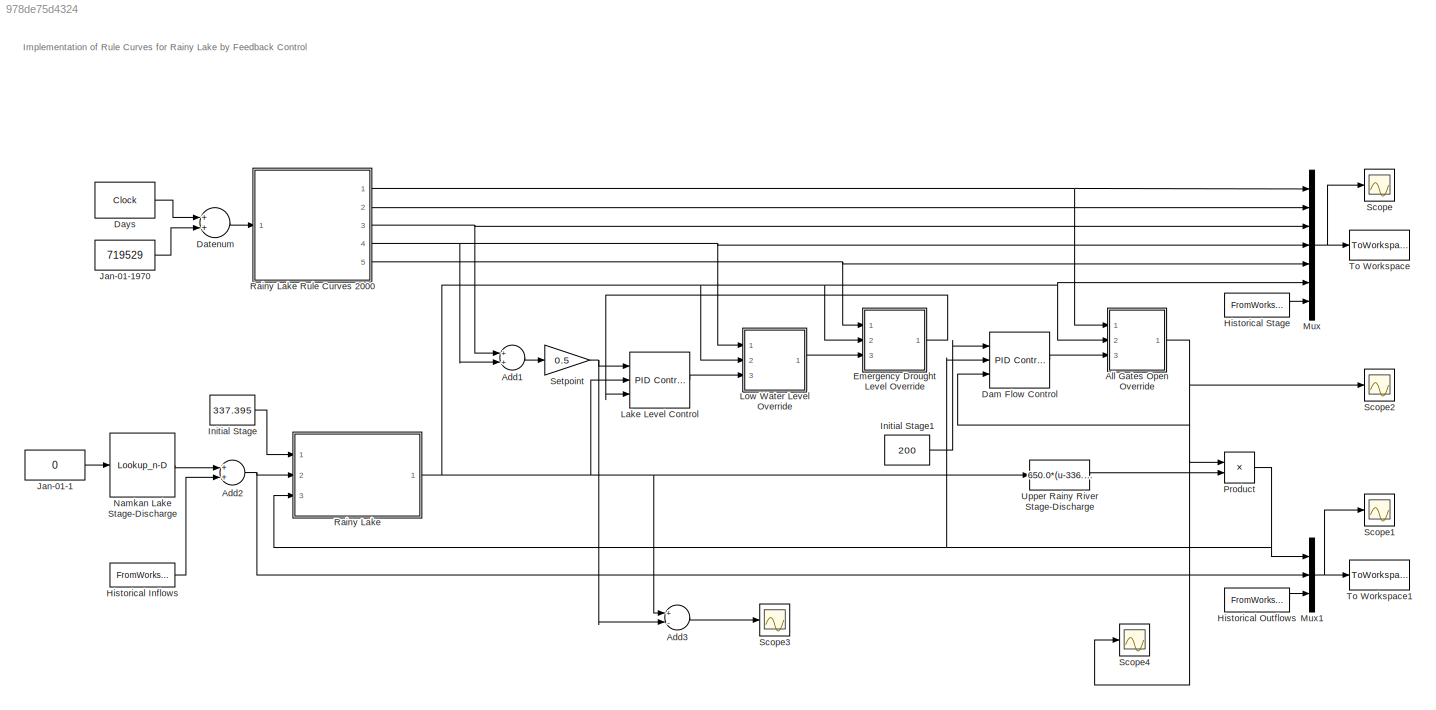
MODEL slx_978de75d4324
KIND model
CONFIG AbsTol = auto
CONFIG FixedStep = auto
CONFIG MaxStep = 1
CONFIG MinStep = auto
CONFIG RelTol = 1e-3
CONFIG SampleTimeConstraint = Unconstrained
CONFIG Solver = ode45
CONFIG SolverMode = Auto
CONFIG SolverName = ode45
CONFIG StartTime = 0.0
CONFIG StopTime = 40*365
BLOCK [Sum] Add1
  InputSameDT = off
  OutDataTypeStr = Inherit: Inherit via internal rule
  Ports = [2, 1]
  SaturateOnIntegerOverflow = off
BLOCK [Sum] Add2
  InputSameDT = off
  OutDataTypeStr = Inherit: Inherit via internal rule
  Ports = [2, 1]
  SaturateOnIntegerOverflow = off
BLOCK [Sum] Add3
  InputSameDT = off
  Inputs = +-
  OutDataTypeStr = Inherit: Inherit via internal rule
  Ports = [2, 1]
  SaturateOnIntegerOverflow = off
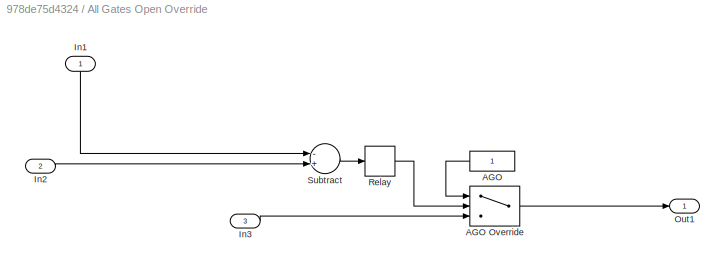
BLOCK [SubSystem] All Gates Open Override
  Ports = [3, 1]
  RequestExecContextInheritance = off
  Variant = off
BLOCK [Constant] All Gates Open Override/AGO
BLOCK [Switch] All Gates Open Override/AGO Override
  Criteria = u2 > Threshold
  InputSameDT = off
  SaturateOnIntegerOverflow = off
BLOCK [Inport] All Gates Open Override/In1
  IconDisplay = Port number
BLOCK [Inport] All Gates Open Override/In2
  IconDisplay = Port number
  Port = 2
BLOCK [Inport] All Gates Open Override/In3
  IconDisplay = Port number
  Port = 3
BLOCK [Outport] All Gates Open Override/Out1
  IconDisplay = Port number
BLOCK [Relay] All Gates Open Override/Relay
  InputProcessing = Elements as channels (sample based)
  OffSwitchValue = -0.02
  OnSwitchValue = 0.02
BLOCK [Sum] All Gates Open Override/Subtract
  InputSameDT = off
  Inputs = -+
  OutDataTypeStr = Inherit: Inherit via internal rule
  Ports = [2, 1]
  SaturateOnIntegerOverflow = off
BLOCK [Reference] Dam Flow Control  REF=simulink/Continuous/PID Controller (2DOF)
  Ports = [3, 1]
  SourceBlock = simulink/Continuous/PID Controller (2DOF)
  SourceType = PID 2dof
BLOCK [Sum] Datenum
  InputSameDT = off
  OutDataTypeStr = Inherit: Inherit via internal rule
  Ports = [2, 1]
  SaturateOnIntegerOverflow = off
BLOCK [Clock] Days
  Decimation = 1
  DisplayTime = on
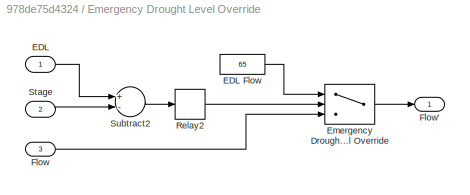
BLOCK [SubSystem] Emergency Drought Level Override
  Ports = [3, 1]
  RequestExecContextInheritance = off
  Variant = off
BLOCK [Inport] Emergency Drought Level Override/EDL
  IconDisplay = Port number
BLOCK [Constant] Emergency Drought Level Override/EDL Flow
  Value = 65
BLOCK [Switch] Emergency Drought Level Override/Emergency Drought Level Override
  Criteria = u2 > Threshold
  InputSameDT = off
  SaturateOnIntegerOverflow = off
BLOCK [Inport] Emergency Drought Level Override/Flow
  IconDisplay = Port number
  Port = 3
BLOCK [Outport] Emergency Drought Level Override/Flow'
  IconDisplay = Port number
BLOCK [Relay] Emergency Drought Level Override/Relay2
  InputProcessing = Elements as channels (sample based)
  OffSwitchValue = -0.02
  OnSwitchValue = 0.02
BLOCK [Inport] Emergency Drought Level Override/Stage
  IconDisplay = Port number
  Port = 2
BLOCK [Sum] Emergency Drought Level Override/Subtract2
  InputSameDT = off
  Inputs = +-
  OutDataTypeStr = Inherit: Inherit via internal rule
  Ports = [2, 1]
  SaturateOnIntegerOverflow = off
BLOCK [FromWorkspace] Historical Inflows
  SampleTime = 1
  VariableName = I
  ZeroCross = on
BLOCK [FromWorkspace] Historical Outflows
  SampleTime = 1
  VariableName = O
  ZeroCross = on
BLOCK [FromWorkspace] Historical Stage
  SampleTime = 1
  VariableName = H
  ZeroCross = on
BLOCK [Constant] Initial Stage
  Value = 337.395
BLOCK [Constant] Initial Stage1
  Value = 200
BLOCK [Constant] Jan-01-1
  Value = 0
BLOCK [Constant] Jan-01-1970
  Value = 719529
BLOCK [Reference] Lake Level Control  REF=simulink/Continuous/PID Controller (2DOF)
  Ports = [3, 1]
  SourceBlock = simulink/Continuous/PID Controller (2DOF)
  SourceType = PID 2dof
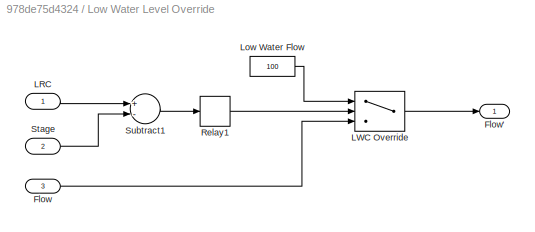
BLOCK [SubSystem] Low Water Level Override
  Ports = [3, 1]
  RequestExecContextInheritance = off
  Variant = off
BLOCK [Inport] Low Water Level Override/Flow
  IconDisplay = Port number
  Port = 3
BLOCK [Outport] Low Water Level Override/Flow'
  IconDisplay = Port number
BLOCK [Inport] Low Water Level Override/LRC
  IconDisplay = Port number
BLOCK [Switch] Low Water Level Override/LWC Override
  Criteria = u2 > Threshold
  InputSameDT = off
  SaturateOnIntegerOverflow = off
BLOCK [Constant] Low Water Level Override/Low Water Flow
  Value = 100
BLOCK [Relay] Low Water Level Override/Relay1
  InputProcessing = Elements as channels (sample based)
  OffSwitchValue = -0.02
  OnSwitchValue = 0.02
BLOCK [Inport] Low Water Level Override/Stage
  IconDisplay = Port number
  Port = 2
BLOCK [Sum] Low Water Level Override/Subtract1
  InputSameDT = off
  Inputs = +-
  OutDataTypeStr = Inherit: Inherit via internal rule
  Ports = [2, 1]
  SaturateOnIntegerOverflow = off
BLOCK [Mux] Mux
  DisplayOption = bar
  Inputs = 7
  Ports = [7, 1]
BLOCK [Mux] Mux1
  DisplayOption = bar
  Inputs = 3
  Ports = [3, 1]
BLOCK [Lookup_n-D] Namkan Lake Stage-Discharge
  BreakpointsForDimension1 = [335.21, 337.0, 338.0, 338.5, 339.0, 339.5, 340.0, 340.5, 341.0, 341.5, 342.0, 342.5, 343.0]
  ExtrapMethod = Clip
  InternalRulePriority = Speed
  NumberOfTableDimensions = 1
  Ports = [1, 1]
  RndMeth = Simplest
  Table = [0 51 120 173 233 299 373 455 549 659 772 886 999]
BLOCK [Product] Product
  InputSameDT = off
  OutDataTypeStr = Inherit: Inherit via internal rule
  Ports = [2, 1]
  RndMeth = Floor
  SaturateOnIntegerOverflow = off
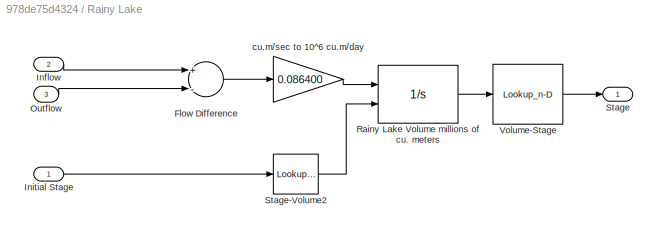
BLOCK [SubSystem] Rainy Lake
  Ports = [3, 1]
  RequestExecContextInheritance = off
  Variant = off
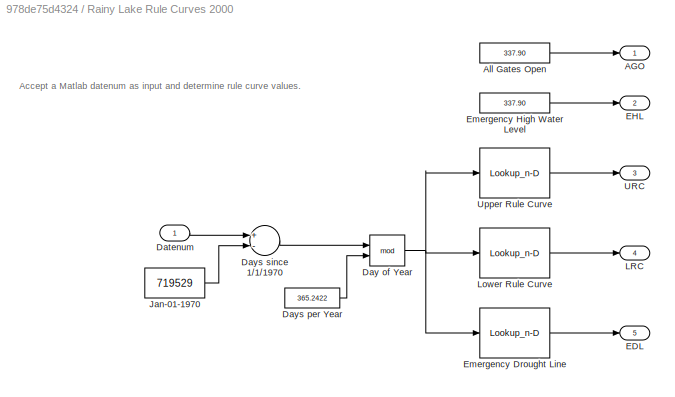
BLOCK [SubSystem] Rainy Lake Rule Curves 2000
  Ports = [1, 5]
  RequestExecContextInheritance = off
  Variant = off
BLOCK [Outport] Rainy Lake Rule Curves 2000/AGO
  IconDisplay = Port number
BLOCK [Constant] Rainy Lake Rule Curves 2000/All Gates Open
  Value = 337.90
BLOCK [Inport] Rainy Lake Rule Curves 2000/Datenum
  IconDisplay = Port number
BLOCK [Math] Rainy Lake Rule Curves 2000/Day of Year
  Operator = mod
  Ports = [2, 1]
BLOCK [Constant] Rainy Lake Rule Curves 2000/Days per Year
  Value = 365.2422
BLOCK [Sum] Rainy Lake Rule Curves 2000/Days since 1//1//1970
  InputSameDT = off
  Inputs = +-
  OutDataTypeStr = Inherit: Inherit via internal rule
  Ports = [2, 1]
  SaturateOnIntegerOverflow = off
BLOCK [Outport] Rainy Lake Rule Curves 2000/EDL
  IconDisplay = Port number
  Port = 5
BLOCK [Outport] Rainy Lake Rule Curves 2000/EHL
  IconDisplay = Port number
  Port = 2
BLOCK [Lookup_n-D] Rainy Lake Rule Curves 2000/Emergency Drought Line
  BreakpointsForDimension1 = [0 91 181 182 297 366]
  InternalRulePriority = Speed
  NumberOfTableDimensions = 1
  Ports = [1, 1]
  RndMeth = Simplest
  Table = [336.90 336.70 336.70 337.20 337.20 336.90]
BLOCK [Constant] Rainy Lake Rule Curves 2000/Emergency High Water Level
  Value = 337.90
BLOCK [Constant] Rainy Lake Rule Curves 2000/Jan-01-1970
  Value = 719529
BLOCK [Outport] Rainy Lake Rule Curves 2000/LRC
  IconDisplay = Port number
  Port = 4
BLOCK [Lookup_n-D] Rainy Lake Rule Curves 2000/Lower Rule Curve
  BreakpointsForDimension1 = [0 91 121 152 182 227 335 366]
  InternalRulePriority = Speed
  NumberOfTableDimensions = 1
  Ports = [1, 1]
  RndMeth = Simplest
  Table = [337.20 336.70 336.80 337.30 337.50 337.50 337.30 337.20]
BLOCK [Outport] Rainy Lake Rule Curves 2000/URC
  IconDisplay = Port number
  Port = 3
BLOCK [Lookup_n-D] Rainy Lake Rule Curves 2000/Upper Rule Curve
  BreakpointsForDimension1 = [0 91 121 152 182 227 335 366]
  InternalRulePriority = Speed
  NumberOfTableDimensions = 1
  Ports = [1, 1]
  RndMeth = Simplest
  Table = [337.45 337.0  337.40 337.60 337.75 337.75 337.60 337.45]
BLOCK [Sum] Rainy Lake/Flow Difference
  InputSameDT = off
  Inputs = +-
  OutDataTypeStr = Inherit: Inherit via internal rule
  Ports = [2, 1]
  SaturateOnIntegerOverflow = off
BLOCK [Inport] Rainy Lake/Inflow
  IconDisplay = Port number
  Port = 2
BLOCK [Inport] Rainy Lake/Initial Stage
  IconDisplay = Port number
BLOCK [Inport] Rainy Lake/Outflow
  IconDisplay = Port number
  Port = 3
BLOCK [Integrator] Rainy Lake/Rainy Lake Volume millions of cu. meters
  ContinuousStateAttributes = 'RainyLakeVolume'
  InitialCondition = 1000
  InitialConditionSource = external
  LimitOutput = on
  LowerSaturationLimit = 0
  Ports = [2, 1]
BLOCK [Outport] Rainy Lake/Stage
  IconDisplay = Port number
BLOCK [Lookup_n-D] Rainy Lake/Stage-Volume2
  BreakpointsForDimension1 = [335.0 336.0 336.5 337.0 337.5 338.0 339.0 340.0]
  InternalRulePriority = Speed
  NumberOfTableDimensions = 1
  Ports = [1, 1]
  RndMeth = Simplest
  Table = [112.67 798.00 1176.42 1577.25 2002.06 2450.57 3416.85 4458.97]
BLOCK [Lookup_n-D] Rainy Lake/Volume-Stage
  BreakpointsForDimension1 = [112.67 798.00 1176.42 1577.25 2002.06 2450.57 3416.85 4458.97]
  InternalRulePriority = Speed
  NumberOfTableDimensions = 1
  Ports = [1, 1]
  RndMeth = Simplest
  Table = [335.0 336.0 336.5 337.0 337.5 338.0 339.0 340.0]
BLOCK [Gain] Rainy Lake/cu.m//sec to 10^6 cu.m//day
  Gain = 0.086400
  OutDataTypeStr = Inherit: Inherit via internal rule
  ParamDataTypeStr = Inherit: Inherit via internal rule
  SaturateOnIntegerOverflow = off
BLOCK [Scope] Scope
  Ports = [1]
  ScopeSpecificationString = Simulink.scopes.TimeScopeBlockCfg('CurrentConfiguration', extmgr.ConfigurationSet(extmgr.Configuration('Core','General UI',true),extmgr.Configuration('Core','Source UI',true),extmgr.Configuration('Sources','WiredSimulink',true),extmgr.Configuration('Visuals','Time Domain',true,'SerializedDisplays',{struct('MinYLimReal','335.89993','MaxYLimReal','338.86168','YLabelReal','','MinYLimMag','335.89993',...<+1578ch>
BLOCK [Scope] Scope1
  Ports = [1]
  ScopeSpecificationString = Simulink.scopes.TimeScopeBlockCfg('CurrentConfiguration', extmgr.ConfigurationSet(extmgr.Configuration('Core','General UI',true),extmgr.Configuration('Core','Source UI',true),extmgr.Configuration('Sources','WiredSimulink',true,'DataLoggingVariableName','ScopeData1'),extmgr.Configuration('Visuals','Time Domain',true,'SerializedDisplays',{struct('MinYLimReal','-406.60224','MaxYLimReal','2543.6575','...<+1439ch>
BLOCK [Scope] Scope2
  Ports = [1]
  ScopeSpecificationString = Simulink.scopes.TimeScopeBlockCfg('CurrentConfiguration', extmgr.ConfigurationSet(extmgr.Configuration('Core','General UI',true),extmgr.Configuration('Core','Source UI',true),extmgr.Configuration('Sources','WiredSimulink',true,'DataLoggingVariableName','ScopeData2'),extmgr.Configuration('Visuals','Time Domain',true,'SerializedDisplays',{struct('MinYLimReal','-0.125','MaxYLimReal','1.125','YLabelRe...<+1400ch>
BLOCK [Scope] Scope3
  Ports = [1]
  ScopeSpecificationString = Simulink.scopes.TimeScopeBlockCfg('CurrentConfiguration', extmgr.ConfigurationSet(extmgr.Configuration('Core','General UI',true),extmgr.Configuration('Core','Source UI',true),extmgr.Configuration('Sources','WiredSimulink',true,'DataLoggingVariableName','ScopeData1'),extmgr.Configuration('Visuals','Time Domain',true,'SerializedDisplays',{struct('MinYLimReal','-1.73407','MaxYLimReal','1.37978','YLab...<+1419ch>
BLOCK [Scope] Scope4
  Ports = [1]
  ScopeSpecificationString = Simulink.scopes.TimeScopeBlockCfg('CurrentConfiguration', extmgr.ConfigurationSet(extmgr.Configuration('Core','General UI',true),extmgr.Configuration('Core','Source UI',true),extmgr.Configuration('Sources','WiredSimulink',true,'DataLoggingVariableName','ScopeData2'),extmgr.Configuration('Visuals','Time Domain',true,'SerializedDisplays',{struct('MinYLimReal','-0.125','MaxYLimReal','1.125','YLabelRe...<+1424ch>
BLOCK [Gain] Setpoint
  Gain = 0.5
  OutDataTypeStr = Inherit: Inherit via internal rule
  ParamDataTypeStr = Inherit: Inherit via internal rule
  SaturateOnIntegerOverflow = off
BLOCK [ToWorkspace] To Workspace
  FixptAsFi = on
  MaxDataPoints = inf
  Ports = [1]
  SampleTime = -1
  Save2DSignal = 3-D array (concatenate along third dimension)
  SaveFormat = Timeseries
  VariableName = levels
BLOCK [ToWorkspace] To Workspace1
  FixptAsFi = on
  MaxDataPoints = inf
  Ports = [1]
  SampleTime = -1
  Save2DSignal = 3-D array (concatenate along third dimension)
  SaveFormat = Timeseries
  VariableName = flows
BLOCK [Fcn] Upper Rainy River Stage-Discharge
  Expr = 650.0*(u-336.2)^0.7
ANNOTATION (root): Implementation of Rule Curves for Rainy Lake by Feedback Control
ANNOTATION Rainy Lake Rule Curves 2000: Accept a Matlab datenum as input and determine rule curve values.
LINE Add1:1 -> Setpoint:1
NET Add2:1 -> Mux1:2, Rainy Lake:2
LINE Add3:1 -> Scope3:1
LINE All Gates Open Override/AGO Override:1 -> All Gates Open Override/Out1:1
LINE All Gates Open Override/AGO:1 -> All Gates Open Override/AGO Override:1
LINE All Gates Open Override/In1:1 -> All Gates Open Override/Subtract:1
LINE All Gates Open Override/In2:1 -> All Gates Open Override/Subtract:2
LINE All Gates Open Override/In3:1 -> All Gates Open Override/AGO Override:3
LINE All Gates Open Override/Relay:1 -> All Gates Open Override/AGO Override:2
LINE All Gates Open Override/Subtract:1 -> All Gates Open Override/Relay:1
NET All Gates Open Override:1 -> Dam Flow Control:3, Product:1, Scope2:1, Scope4:1
LINE Dam Flow Control:1 -> All Gates Open Override:3
LINE Datenum:1 -> Rainy Lake Rule Curves 2000:1
LINE Days:1 -> Datenum:1
LINE Emergency Drought Level Override/EDL Flow:1 -> Emergency Drought Level Override/Emergency Drought Level Override:1
LINE Emergency Drought Level Override/EDL:1 -> Emergency Drought Level Override/Subtract2:1
LINE Emergency Drought Level Override/Emergency Drought Level Override:1 -> Emergency Drought Level Override/Flow':1
LINE Emergency Drought Level Override/Flow:1 -> Emergency Drought Level Override/Emergency Drought Level Override:3
LINE Emergency Drought Level Override/Relay2:1 -> Emergency Drought Level Override/Emergency Drought Level Override:2
LINE Emergency Drought Level Override/Stage:1 -> Emergency Drought Level Override/Subtract2:2
LINE Emergency Drought Level Override/Subtract2:1 -> Emergency Drought Level Override/Relay2:1
LINE Emergency Drought Level Override:1 -> Lake Level Control:3
LINE Historical Inflows:1 -> Add2:2
LINE Historical Outflows:1 -> Mux1:3
LINE Historical Stage:1 -> Mux:7
LINE Initial Stage1:1 -> Dam Flow Control:1
LINE Initial Stage:1 -> Rainy Lake:1
LINE Jan-01-1970:1 -> Datenum:2
LINE Jan-01-1:1 -> Namkan Lake Stage-Discharge:1
LINE Lake Level Control:1 -> Low Water Level Override:3
LINE Low Water Level Override/Flow:1 -> Low Water Level Override/LWC Override:3
LINE Low Water Level Override/LRC:1 -> Low Water Level Override/Subtract1:1
LINE Low Water Level Override/LWC Override:1 -> Low Water Level Override/Flow':1
LINE Low Water Level Override/Low Water Flow:1 -> Low Water Level Override/LWC Override:1
LINE Low Water Level Override/Relay1:1 -> Low Water Level Override/LWC Override:2
LINE Low Water Level Override/Stage:1 -> Low Water Level Override/Subtract1:2
LINE Low Water Level Override/Subtract1:1 -> Low Water Level Override/Relay1:1
LINE Low Water Level Override:1 -> Emergency Drought Level Override:3
NET Mux1:1 -> Scope1:1, To Workspace1:1
NET Mux:1 -> Scope:1, To Workspace:1
LINE Namkan Lake Stage-Discharge:1 -> Add2:1
NET Product:1 -> Dam Flow Control:2, Mux1:1, Rainy Lake:3
LINE Rainy Lake Rule Curves 2000/All Gates Open:1 -> Rainy Lake Rule Curves 2000/AGO:1
LINE Rainy Lake Rule Curves 2000/Datenum:1 -> Rainy Lake Rule Curves 2000/Days since 1//1//1970:1
NET Rainy Lake Rule Curves 2000/Day of Year:1 -> Rainy Lake Rule Curves 2000/Emergency Drought Line:1, Rainy Lake Rule Curves 2000/Lower Rule Curve:1, Rainy Lake Rule Curves 2000/Upper Rule Curve:1
LINE Rainy Lake Rule Curves 2000/Days per Year:1 -> Rainy Lake Rule Curves 2000/Day of Year:2
LINE Rainy Lake Rule Curves 2000/Days since 1//1//1970:1 -> Rainy Lake Rule Curves 2000/Day of Year:1
LINE Rainy Lake Rule Curves 2000/Emergency Drought Line:1 -> Rainy Lake Rule Curves 2000/EDL:1
LINE Rainy Lake Rule Curves 2000/Emergency High Water Level:1 -> Rainy Lake Rule Curves 2000/EHL:1
LINE Rainy Lake Rule Curves 2000/Jan-01-1970:1 -> Rainy Lake Rule Curves 2000/Days since 1//1//1970:2
LINE Rainy Lake Rule Curves 2000/Lower Rule Curve:1 -> Rainy Lake Rule Curves 2000/LRC:1
LINE Rainy Lake Rule Curves 2000/Upper Rule Curve:1 -> Rainy Lake Rule Curves 2000/URC:1
NET Rainy Lake Rule Curves 2000:1 -> All Gates Open Override:1, Mux:1
LINE Rainy Lake Rule Curves 2000:2 -> Mux:2
NET Rainy Lake Rule Curves 2000:3 -> Add1:1, Mux:3
NET Rainy Lake Rule Curves 2000:4 -> Add1:2, Low Water Level Override:1, Mux:4
NET Rainy Lake Rule Curves 2000:5 -> Emergency Drought Level Override:1, Mux:5
LINE Rainy Lake/Flow Difference:1 -> Rainy Lake/cu.m//sec to 10^6 cu.m//day:1
LINE Rainy Lake/Inflow:1 -> Rainy Lake/Flow Difference:1
LINE Rainy Lake/Initial Stage:1 -> Rainy Lake/Stage-Volume2:1
LINE Rainy Lake/Outflow:1 -> Rainy Lake/Flow Difference:2
LINE Rainy Lake/Rainy Lake Volume millions of cu. meters:1 -> Rainy Lake/Volume-Stage:1
LINE Rainy Lake/Stage-Volume2:1 -> Rainy Lake/Rainy Lake Volume millions of cu. meters:2
LINE Rainy Lake/Volume-Stage:1 -> Rainy Lake/Stage:1
LINE Rainy Lake/cu.m//sec to 10^6 cu.m//day:1 -> Rainy Lake/Rainy Lake Volume millions of cu. meters:1
NET Rainy Lake:1 -> Add3:1, All Gates Open Override:2, Emergency Drought Level Override:2, Lake Level Control:2, Low Water Level Override:2, Mux:6, Upper Rainy River Stage-Discharge:1
NET Setpoint:1 -> Add3:2, Lake Level Control:1
LINE Upper Rainy River Stage-Discharge:1 -> Product:2
note: NET lines group one-source signal fan-out (src -> all destinations, sorted); 1:1 wires keep LINE
